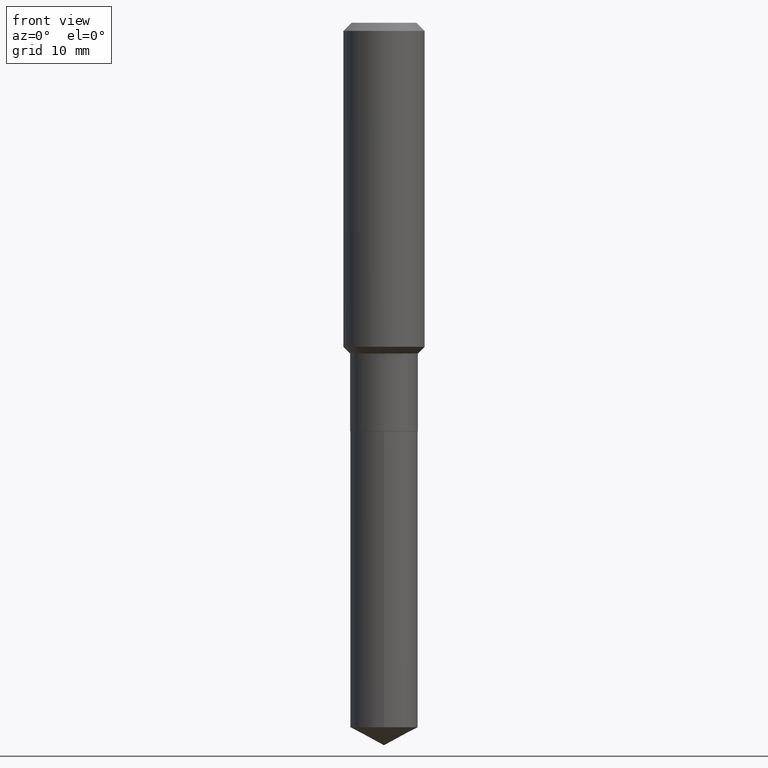
[diagram: clean part render]
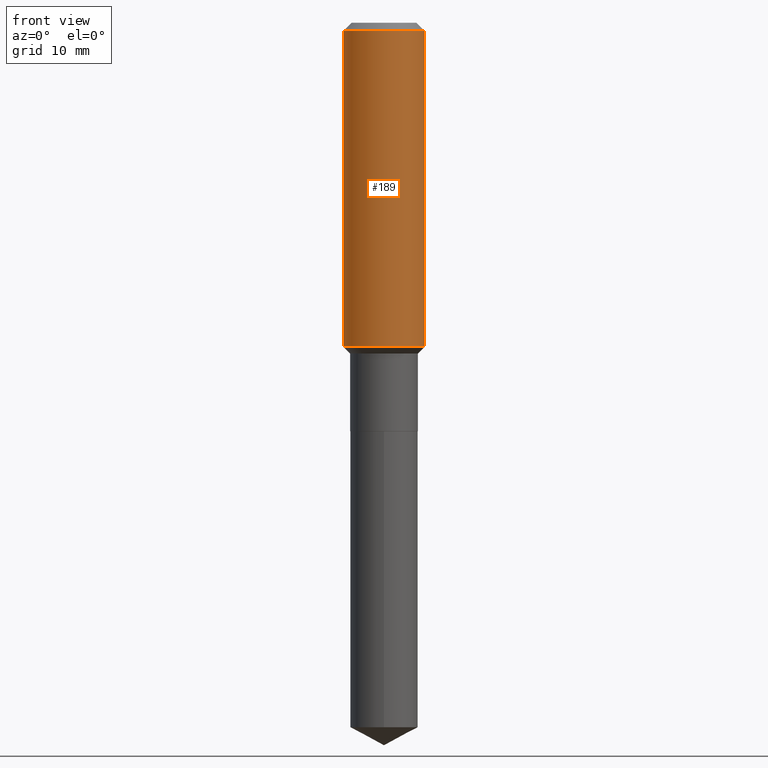
[diagram: same view with one face highlighted and labeled with its STEP entity id]
A machine part, front view. The second image highlights one B-rep face of the part: STEP entity #189.
In plain terms, the highlighted cylindrical surface (partial cylindrical patch) has radius 5 mm, axis along (-0, 0, 1).
Its self-contained STEP definition (entity closure, byte-faithful):
#13 = EDGE_CURVE ( 'NONE', #245, #131, #324, .T. ) ;
#16 = DIRECTION ( 'NONE',  ( -2.445468806185136597E-29, 3.491481338843145583E-15, 1.000000000000000000 ) ) ;
#25 = CARTESIAN_POINT ( 'NONE',  ( 0.000000000000000000, 0.000000000000000000, 0.000000000000000000 ) ) ;
#34 = DIRECTION ( 'NONE',  ( 1.000000000000000000, -6.982962677686266711E-15, 4.876176775795935793E-29 ) ) ;
#47 = ORIENTED_EDGE ( 'NONE', *, *, #413, .F. ) ;
#55 = DIRECTION ( 'NONE',  ( 1.000000000000000000, -6.982962677686266711E-15, 0.000000000000000000 ) ) ;
#81 = DIRECTION ( 'NONE',  ( 1.000000000000000000, -6.982962677686266711E-15, 0.000000000000000000 ) ) ;
#97 = DIRECTION ( 'NONE',  ( -2.445468806185136877E-29, 3.491481338843145188E-15, 1.000000000000000000 ) ) ;
#119 = CARTESIAN_POINT ( 'NONE',  ( 0.1968500000000001915, -6.861459127094544262E-15, -1.571499999999999675 ) ) ;
#131 = VERTEX_POINT ( 'NONE', #252 ) ;
#133 = VERTEX_POINT ( 'NONE', #285 ) ;
#142 = AXIS2_PLACEMENT_3D ( 'NONE', #419, #196, #81 ) ;
#173 = ORIENTED_EDGE ( 'NONE', *, *, #13, .T. ) ;
#189 = ADVANCED_FACE ( 'NONE', ( #326 ), #439, .T. ) ;
#196 = DIRECTION ( 'NONE',  ( -2.445468806185136597E-29, 3.491481338843145583E-15, 1.000000000000000000 ) ) ;
#209 = CARTESIAN_POINT ( 'NONE',  ( 0.1968500000000001082, -1.374596203102542397E-15, 9.598753983154305062E-30 ) ) ;
#212 = AXIS2_PLACEMENT_3D ( 'NONE', #235, #16, #55 ) ;
#216 = DIRECTION ( 'NONE',  ( -2.445468806185136597E-29, 3.491481338843145583E-15, 1.000000000000000000 ) ) ;
#234 = CIRCLE ( 'NONE', #212, 0.1968500000000000527 ) ;
#235 = CARTESIAN_POINT ( 'NONE',  ( 9.627810689950950651E-31, -1.374596203102555808E-16, -0.03937000000000027283 ) ) ;
#245 = VERTEX_POINT ( 'NONE', #119 ) ;
#252 = CARTESIAN_POINT ( 'NONE',  ( 0.1968500000000000527, -1.512055823412797583E-15, -0.03937000000000027283 ) ) ;
#276 = ORIENTED_EDGE ( 'NONE', *, *, #449, .F. ) ;
#285 = CARTESIAN_POINT ( 'NONE',  ( -0.1968500000000000527, -1.413457896807370738E-15, -0.03937000000000027283 ) ) ;
#303 = CIRCLE ( 'NONE', #142, 0.1968500000000001915 ) ;
#304 = EDGE_CURVE ( 'NONE', #362, #245, #303, .T. ) ;
#324 = LINE ( 'NONE', #209, #373 ) ;
#326 = FACE_OUTER_BOUND ( 'NONE', #387, .T. ) ;
#357 = DIRECTION ( 'NONE',  ( -2.445468806185136877E-29, 3.491481338843145188E-15, 1.000000000000000000 ) ) ;
#362 = VERTEX_POINT ( 'NONE', #381 ) ;
#373 = VECTOR ( 'NONE', #97, 39.37007874015748143 ) ;
#381 = CARTESIAN_POINT ( 'NONE',  ( -0.1968500000000001915, -4.088159548648243288E-15, -1.571499999999999675 ) ) ;
#387 = EDGE_LOOP ( 'NONE', ( #276, #473, #173, #47 ) ) ;
#391 = AXIS2_PLACEMENT_3D ( 'NONE', #25, #216, #34 ) ;
#392 = CARTESIAN_POINT ( 'NONE',  ( -0.1968500000000001082, 1.398703375343757985E-15, -9.682923725166787881E-30 ) ) ;
#409 = VECTOR ( 'NONE', #357, 39.37007874015748143 ) ;
#413 = EDGE_CURVE ( 'NONE', #133, #131, #234, .T. ) ;
#419 = CARTESIAN_POINT ( 'NONE',  ( 3.843054228919941314E-29, -5.486862923992002653E-15, -1.571499999999999675 ) ) ;
#423 = LINE ( 'NONE', #392, #409 ) ;
#439 = CYLINDRICAL_SURFACE ( 'NONE', #391, 0.1968500000000001082 ) ;
#449 = EDGE_CURVE ( 'NONE', #362, #133, #423, .T. ) ;
#473 = ORIENTED_EDGE ( 'NONE', *, *, #304, .T. ) ;